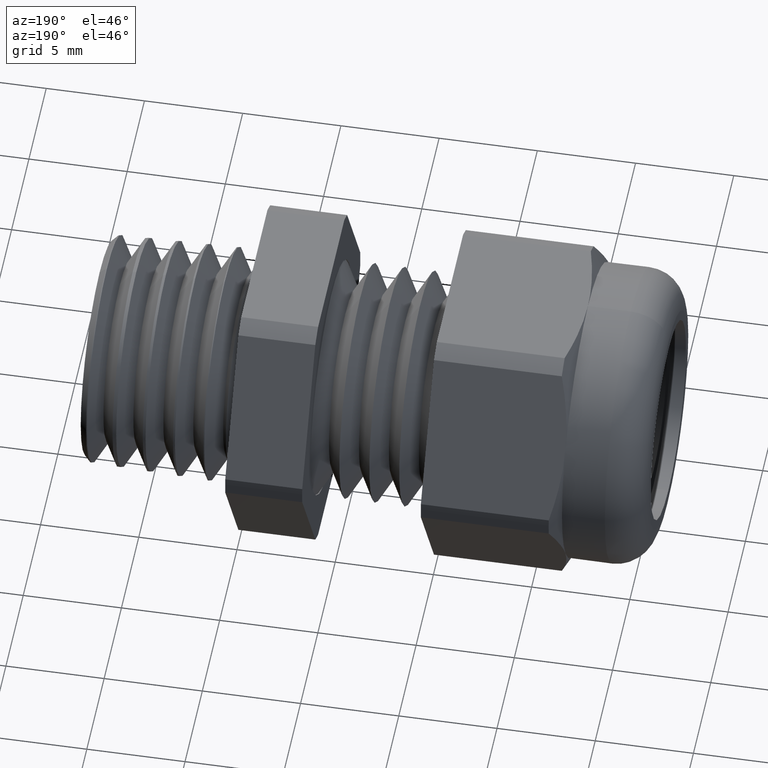
[diagram: clean part render]
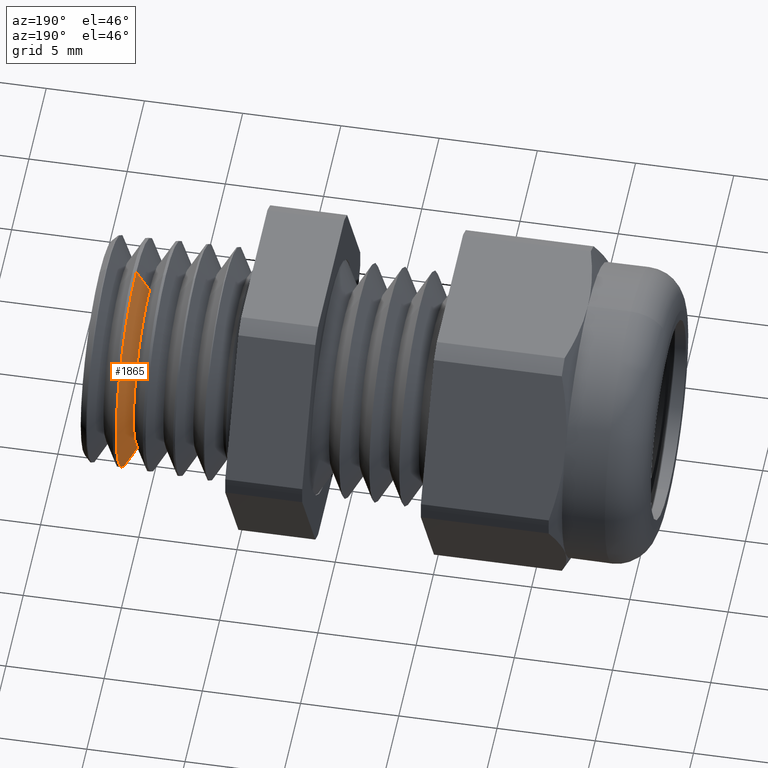
[diagram: same view with one face highlighted and labeled with its STEP entity id]
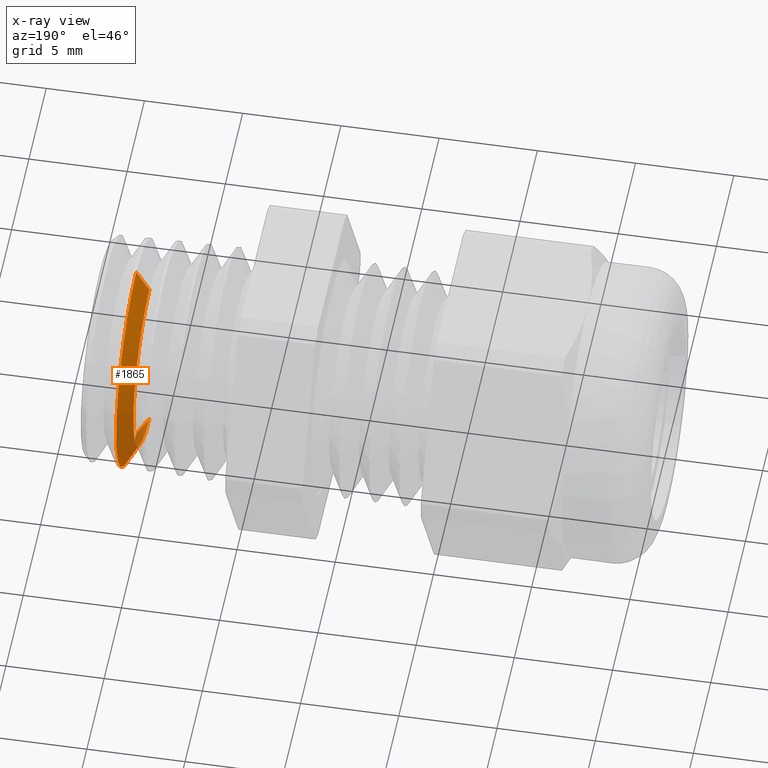
[diagram: x-ray of the same camera — body ghosted, the highlighted face saturated]
A machine part, auxiliary view. The second image highlights one B-rep face of the part: STEP entity #1865.
The next image is the same camera in x-ray: the body ghosted, the highlighted face saturated — about 5% of this face is hidden behind the body in this view.
In plain terms, the highlighted conical surface has half-angle 60 deg.
Its self-contained STEP definition (entity closure, byte-faithful):
#285 = CARTESIAN_POINT ( 'NONE',  ( 0.2099999860124967500, 2.530442858648395600E-017, -0.1830384999999999700 ) ) ;
#286 = CARTESIAN_POINT ( 'NONE',  ( 0.2099999860124967500, 0.0000000000000000000, 0.1830384999999999700 ) ) ;
#287 = DIRECTION ( 'NONE',  ( 0.0000000000000000000, 0.0000000000000000000, 1.000000000000000000 ) ) ;
#288 = DIRECTION ( 'NONE',  ( -1.000000000000000000, 0.0000000000000000000, 0.0000000000000000000 ) ) ;
#289 = CARTESIAN_POINT ( 'NONE',  ( 0.2099999860124967500, 0.0000000000000000000, 0.0000000000000000000 ) ) ;
#290 = AXIS2_PLACEMENT_3D ( 'NONE', #289, #288, #287 ) ;
#291 = CIRCLE ( 'NONE', #290, 0.1830384999999999700 ) ;
#292 = DIRECTION ( 'NONE',  ( 0.0000000000000000000, 0.0000000000000000000, -1.000000000000000000 ) ) ;
#293 = DIRECTION ( 'NONE',  ( 1.000000000000000000, 0.0000000000000000000, 0.0000000000000000000 ) ) ;
#294 = AXIS2_PLACEMENT_3D ( 'NONE', #296, #293, #292 ) ;
#295 = CONICAL_SURFACE ( 'NONE', #294, 0.1830384999999999700, 1.047197551196597400 ) ;
#296 = CARTESIAN_POINT ( 'NONE',  ( 0.2099999860124967500, 0.0000000000000000000, 0.0000000000000000000 ) ) ;
#297 = FACE_OUTER_BOUND ( 'NONE', #1859, .T. ) ;
#338 = DIRECTION ( 'NONE',  ( 0.0000000000000000000, 0.0000000000000000000, -1.000000000000000000 ) ) ;
#339 = DIRECTION ( 'NONE',  ( -1.000000000000000000, 0.0000000000000000000, 0.0000000000000000000 ) ) ;
#340 = CARTESIAN_POINT ( 'NONE',  ( 0.2364255839236068500, 0.0000000000000000000, 0.0000000000000000000 ) ) ;
#341 = AXIS2_PLACEMENT_3D ( 'NONE', #340, #339, #338 ) ;
#342 = CIRCLE ( 'NONE', #341, 0.2288089782024272900 ) ;
#343 = CARTESIAN_POINT ( 'NONE',  ( 0.2364255839236068500, 0.0000000000000000000, 0.2288089782024272900 ) ) ;
#344 = DIRECTION ( 'NONE',  ( 0.5000000000000003300, 1.060575238724906700E-016, 0.8660254037844383700 ) ) ;
#345 = VECTOR ( 'NONE', #344, 39.37007874015748100 ) ;
#346 = CARTESIAN_POINT ( 'NONE',  ( 0.2099999860124967500, 2.241575131457327600E-017, 0.1830384999999999700 ) ) ;
#347 = LINE ( 'NONE', #346, #345 ) ;
#381 = DIRECTION ( 'NONE',  ( 0.5000000000000003300, 0.0000000000000000000, -0.8660254037844383700 ) ) ;
#382 = VECTOR ( 'NONE', #381, 39.37007874015748100 ) ;
#383 = CARTESIAN_POINT ( 'NONE',  ( 0.2099999860124967500, 0.0000000000000000000, -0.1830384999999999700 ) ) ;
#384 = LINE ( 'NONE', #383, #382 ) ;
#385 = CARTESIAN_POINT ( 'NONE',  ( 0.2364255839236068500, 2.802101827717790500E-017, -0.2288089782024272900 ) ) ;
#1859 = EDGE_LOOP ( 'NONE', ( #1866, #1870, #1873, #1928 ) ) ;
#1865 = ADVANCED_FACE ( 'NONE', ( #297 ), #295, .T. ) ;
#1866 = ORIENTED_EDGE ( 'NONE', *, *, #1867, .F. ) ;
#1867 = EDGE_CURVE ( 'NONE', #1868, #1869, #291, .T. ) ;
#1868 = VERTEX_POINT ( 'NONE', #286 ) ;
#1869 = VERTEX_POINT ( 'NONE', #285 ) ;
#1870 = ORIENTED_EDGE ( 'NONE', *, *, #1871, .T. ) ;
#1871 = EDGE_CURVE ( 'NONE', #1868, #1872, #347, .T. ) ;
#1872 = VERTEX_POINT ( 'NONE', #343 ) ;
#1873 = ORIENTED_EDGE ( 'NONE', *, *, #1874, .T. ) ;
#1874 = EDGE_CURVE ( 'NONE', #1872, #1927, #342, .T. ) ;
#1927 = VERTEX_POINT ( 'NONE', #385 ) ;
#1928 = ORIENTED_EDGE ( 'NONE', *, *, #1929, .F. ) ;
#1929 = EDGE_CURVE ( 'NONE', #1869, #1927, #384, .T. ) ;